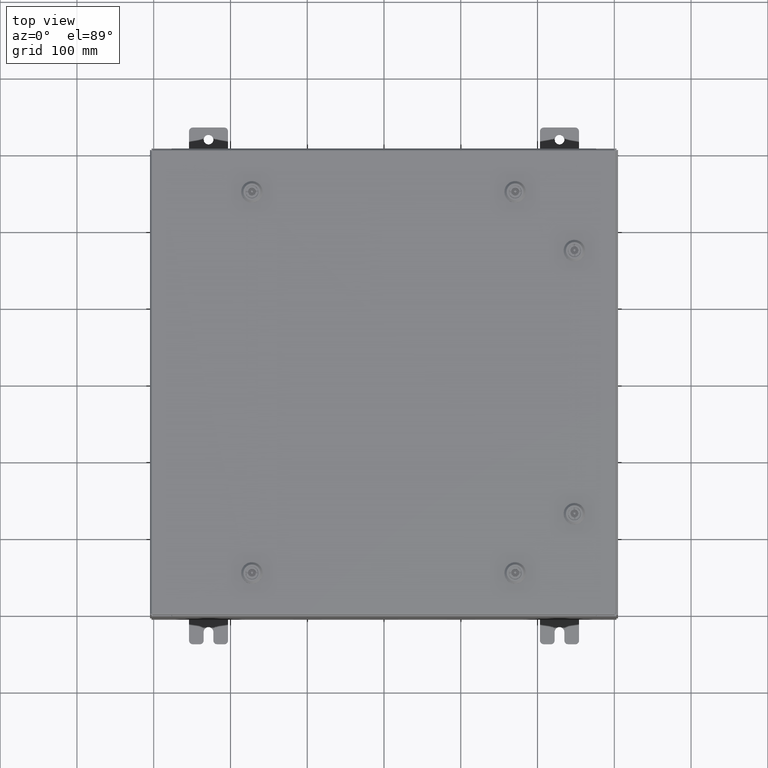
[diagram: clean part render]
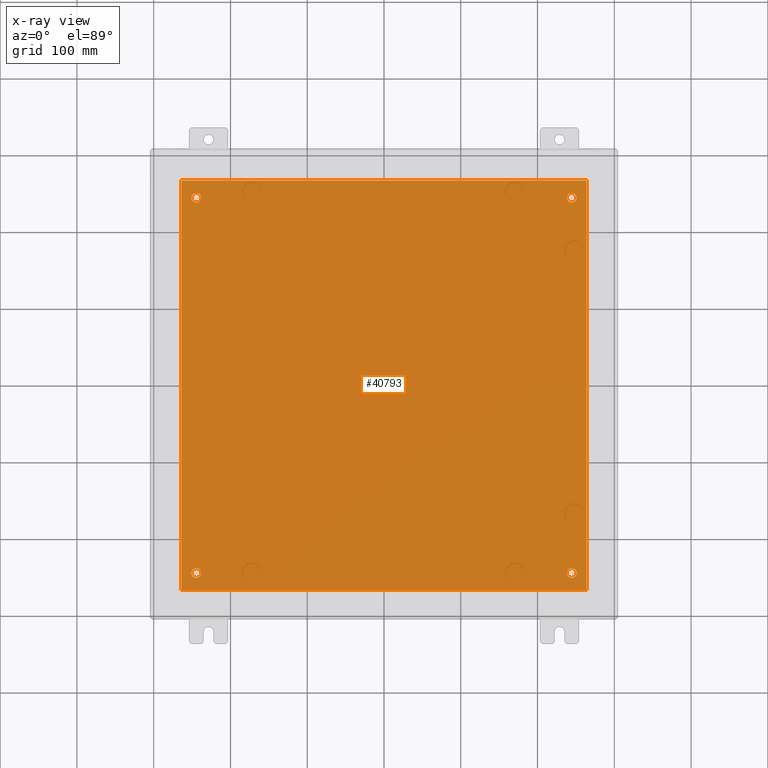
[diagram: x-ray — body ghosted, one internal face saturated and labeled with its STEP entity id]
A machine part, top view, then the same camera in x-ray: the body is ghosted and one INTERNAL B-rep face — a face not visible from any outside direction — is saturated and labeled: STEP entity #40793.
In plain terms, the highlighted planar face has unit normal (0, 0, -1).
Its self-contained STEP definition (entity closure, byte-faithful):
#475 = FACE_BOUND ( 'NONE', #32001, .T. ) ;
#476 = CARTESIAN_POINT ( 'NONE',  ( 9.625000000000005300, 9.625000000000001800, -0.1039999999999999800 ) ) ;
#485 = DIRECTION ( 'NONE',  ( 1.000000000000000000, 0.0000000000000000000, 0.0000000000000000000 ) ) ;
#2077 = EDGE_CURVE ( 'NONE', #15142, #42575, #40214, .T. ) ;
#2918 = LINE ( 'NONE', #48644, #39074 ) ;
#3005 = AXIS2_PLACEMENT_3D ( 'NONE', #8942, #43367, #13859 ) ;
#3628 = CIRCLE ( 'NONE', #53602, 0.2499999999999987000 ) ;
#4705 = EDGE_LOOP ( 'NONE', ( #22232, #27024 ) ) ;
#5419 = DIRECTION ( 'NONE',  ( -1.000000000000000000, 0.0000000000000000000, 0.0000000000000000000 ) ) ;
#6258 = AXIS2_PLACEMENT_3D ( 'NONE', #12764, #49614, #6601 ) ;
#6601 = DIRECTION ( 'NONE',  ( -1.000000000000000000, 0.0000000000000000000, 0.0000000000000000000 ) ) ;
#6744 = VECTOR ( 'NONE', #35397, 39.37007874015748100 ) ;
#7084 = CIRCLE ( 'NONE', #15951, 0.2499999999999987000 ) ;
#7335 = EDGE_CURVE ( 'NONE', #47870, #20761, #34424, .T. ) ;
#8166 = DIRECTION ( 'NONE',  ( -0.0000000000000000000, -0.0000000000000000000, 1.000000000000000000 ) ) ;
#8942 = CARTESIAN_POINT ( 'NONE',  ( -9.625000000000005300, -9.625000000000001800, -0.1039999999999999800 ) ) ;
#8992 = EDGE_LOOP ( 'NONE', ( #35620, #54152, #17828, #25479 ) ) ;
#9489 = VERTEX_POINT ( 'NONE', #42582 ) ;
#10708 = AXIS2_PLACEMENT_3D ( 'NONE', #37655, #8166, #42587 ) ;
#10724 = EDGE_CURVE ( 'NONE', #32295, #39082, #62984, .T. ) ;
#11977 = FACE_OUTER_BOUND ( 'NONE', #8992, .T. ) ;
#12764 = CARTESIAN_POINT ( 'NONE',  ( 9.625000000000005300, 9.625000000000001800, -0.1039999999999999800 ) ) ;
#13531 = FACE_BOUND ( 'NONE', #4705, .T. ) ;
#13561 = VERTEX_POINT ( 'NONE', #21284 ) ;
#13859 = DIRECTION ( 'NONE',  ( -1.000000000000000000, 0.0000000000000000000, 0.0000000000000000000 ) ) ;
#14337 = DIRECTION ( 'NONE',  ( -0.0000000000000000000, -0.0000000000000000000, 1.000000000000000000 ) ) ;
#15142 = VERTEX_POINT ( 'NONE', #48000 ) ;
#15951 = AXIS2_PLACEMENT_3D ( 'NONE', #46116, #16634, #51033 ) ;
#16179 = DIRECTION ( 'NONE',  ( -0.0000000000000000000, -0.0000000000000000000, 1.000000000000000000 ) ) ;
#16634 = DIRECTION ( 'NONE',  ( -0.0000000000000000000, -0.0000000000000000000, 1.000000000000000000 ) ) ;
#17828 = ORIENTED_EDGE ( 'NONE', *, *, #7335, .F. ) ;
#18080 = ORIENTED_EDGE ( 'NONE', *, *, #27271, .T. ) ;
#18875 = DIRECTION ( 'NONE',  ( -1.000000000000000000, 0.0000000000000000000, -0.0000000000000000000 ) ) ;
#19230 = CIRCLE ( 'NONE', #10708, 0.2499999999999987000 ) ;
#20255 = LINE ( 'NONE', #29980, #44902 ) ;
#20761 = VERTEX_POINT ( 'NONE', #51063 ) ;
#21284 = CARTESIAN_POINT ( 'NONE',  ( -9.375000000000005300, 9.625000000000001800, -0.1039999999999999800 ) ) ;
#21743 = CARTESIAN_POINT ( 'NONE',  ( -9.375000000000005300, -9.625000000000001800, -0.1039999999999999800 ) ) ;
#22232 = ORIENTED_EDGE ( 'NONE', *, *, #2077, .T. ) ;
#23597 = CARTESIAN_POINT ( 'NONE',  ( -9.625000000000005300, 9.625000000000001800, -0.1039999999999999800 ) ) ;
#24152 = DIRECTION ( 'NONE',  ( 0.0000000000000000000, 1.000000000000000000, 0.0000000000000000000 ) ) ;
#25126 = FACE_BOUND ( 'NONE', #60896, .T. ) ;
#25479 = ORIENTED_EDGE ( 'NONE', *, *, #54631, .F. ) ;
#25531 = CARTESIAN_POINT ( 'NONE',  ( -10.50000000000000000, 10.50000000000000200, -0.1039999999999999800 ) ) ;
#26641 = AXIS2_PLACEMENT_3D ( 'NONE', #43836, #14337, #48767 ) ;
#27024 = ORIENTED_EDGE ( 'NONE', *, *, #29023, .T. ) ;
#27271 = EDGE_CURVE ( 'NONE', #37586, #62910, #45670, .T. ) ;
#28552 = DIRECTION ( 'NONE',  ( -1.000000000000000000, 0.0000000000000000000, 0.0000000000000000000 ) ) ;
#28583 = CARTESIAN_POINT ( 'NONE',  ( 0.0000000000000000000, 0.0000000000000000000, -0.1039999999999999800 ) ) ;
#29023 = EDGE_CURVE ( 'NONE', #42575, #15142, #50161, .T. ) ;
#29332 = AXIS2_PLACEMENT_3D ( 'NONE', #45693, #16179, #50590 ) ;
#29980 = CARTESIAN_POINT ( 'NONE',  ( -10.50000000000000200, -10.50000000000000000, -0.1039999999999999800 ) ) ;
#31973 = EDGE_CURVE ( 'NONE', #39082, #32295, #39317, .T. ) ;
#32001 = EDGE_LOOP ( 'NONE', ( #52574, #56876 ) ) ;
#32295 = VERTEX_POINT ( 'NONE', #60903 ) ;
#34304 = VECTOR ( 'NONE', #43448, 39.37007874015748100 ) ;
#34424 = LINE ( 'NONE', #25531, #6744 ) ;
#34467 = CARTESIAN_POINT ( 'NONE',  ( 10.38300000000000100, 10.50000000000000200, -0.1039999999999999800 ) ) ;
#34875 = DIRECTION ( 'NONE',  ( -0.0000000000000000000, -0.0000000000000000000, 1.000000000000000000 ) ) ;
#35397 = DIRECTION ( 'NONE',  ( -1.000000000000000000, -0.0000000000000000000, -0.0000000000000000000 ) ) ;
#35620 = ORIENTED_EDGE ( 'NONE', *, *, #60426, .F. ) ;
#36280 = EDGE_CURVE ( 'NONE', #13561, #42722, #19230, .T. ) ;
#37453 = CARTESIAN_POINT ( 'NONE',  ( 9.375000000000007100, -9.625000000000001800, -0.1039999999999999800 ) ) ;
#37586 = VERTEX_POINT ( 'NONE', #21743 ) ;
#37655 = CARTESIAN_POINT ( 'NONE',  ( -9.625000000000005300, 9.625000000000001800, -0.1039999999999999800 ) ) ;
#38202 = FACE_BOUND ( 'NONE', #45285, .T. ) ;
#39074 = VECTOR ( 'NONE', #24152, 39.37007874015748100 ) ;
#39082 = VERTEX_POINT ( 'NONE', #37453 ) ;
#39317 = CIRCLE ( 'NONE', #26641, 0.2499999999999976100 ) ;
#39682 = EDGE_CURVE ( 'NONE', #42722, #13561, #3628, .T. ) ;
#40214 = CIRCLE ( 'NONE', #6258, 0.2499999999999976100 ) ;
#40793 = ADVANCED_FACE ( 'NONE', ( #38202, #475, #13531, #25126, #11977 ), #43417, .T. ) ;
#42575 = VERTEX_POINT ( 'NONE', #43029 ) ;
#42582 = CARTESIAN_POINT ( 'NONE',  ( -10.38299999999999900, -10.50000000000000000, -0.1040000000000031300 ) ) ;
#42587 = DIRECTION ( 'NONE',  ( -1.000000000000000000, 0.0000000000000000000, 0.0000000000000000000 ) ) ;
#42722 = VERTEX_POINT ( 'NONE', #49440 ) ;
#43029 = CARTESIAN_POINT ( 'NONE',  ( 9.375000000000007100, 9.625000000000001800, -0.1039999999999999800 ) ) ;
#43367 = DIRECTION ( 'NONE',  ( -0.0000000000000000000, -0.0000000000000000000, 1.000000000000000000 ) ) ;
#43417 = PLANE ( 'NONE',  #43423 ) ;
#43423 = AXIS2_PLACEMENT_3D ( 'NONE', #28583, #48317, #18875 ) ;
#43448 = DIRECTION ( 'NONE',  ( 0.0000000000000000000, -1.000000000000000000, 0.0000000000000000000 ) ) ;
#43836 = CARTESIAN_POINT ( 'NONE',  ( 9.625000000000005300, -9.625000000000001800, -0.1039999999999999800 ) ) ;
#44257 = AXIS2_PLACEMENT_3D ( 'NONE', #476, #34875, #5419 ) ;
#44902 = VECTOR ( 'NONE', #485, 39.37007874015748100 ) ;
#45285 = EDGE_LOOP ( 'NONE', ( #18080, #53604 ) ) ;
#45670 = CIRCLE ( 'NONE', #3005, 0.2499999999999987000 ) ;
#45693 = CARTESIAN_POINT ( 'NONE',  ( 9.625000000000005300, -9.625000000000001800, -0.1039999999999999800 ) ) ;
#45950 = EDGE_CURVE ( 'NONE', #62910, #37586, #7084, .T. ) ;
#46116 = CARTESIAN_POINT ( 'NONE',  ( -9.625000000000005300, -9.625000000000001800, -0.1039999999999999800 ) ) ;
#46288 = CARTESIAN_POINT ( 'NONE',  ( 10.38299999999999900, -10.50000000000000000, -0.1039999999999999800 ) ) ;
#47870 = VERTEX_POINT ( 'NONE', #34467 ) ;
#48000 = CARTESIAN_POINT ( 'NONE',  ( 9.875000000000003600, 9.625000000000001800, -0.1039999999999999800 ) ) ;
#48317 = DIRECTION ( 'NONE',  ( 0.0000000000000000000, 0.0000000000000000000, -1.000000000000000000 ) ) ;
#48644 = CARTESIAN_POINT ( 'NONE',  ( 10.38300000000000100, -10.50000000000000200, -0.1040000000000009100 ) ) ;
#48767 = DIRECTION ( 'NONE',  ( -1.000000000000000000, 0.0000000000000000000, 0.0000000000000000000 ) ) ;
#49440 = CARTESIAN_POINT ( 'NONE',  ( -9.875000000000005300, 9.625000000000001800, -0.1039999999999999800 ) ) ;
#49614 = DIRECTION ( 'NONE',  ( -0.0000000000000000000, -0.0000000000000000000, 1.000000000000000000 ) ) ;
#50161 = CIRCLE ( 'NONE', #44257, 0.2499999999999976100 ) ;
#50590 = DIRECTION ( 'NONE',  ( -1.000000000000000000, 0.0000000000000000000, 0.0000000000000000000 ) ) ;
#51033 = DIRECTION ( 'NONE',  ( -1.000000000000000000, 0.0000000000000000000, 0.0000000000000000000 ) ) ;
#51063 = CARTESIAN_POINT ( 'NONE',  ( -10.38299999999999900, 10.50000000000000400, -0.1040000000000031300 ) ) ;
#52127 = VERTEX_POINT ( 'NONE', #46288 ) ;
#52574 = ORIENTED_EDGE ( 'NONE', *, *, #10724, .T. ) ;
#53058 = CARTESIAN_POINT ( 'NONE',  ( -10.38299999999999900, 10.50000000000000400, -0.1040000000000031300 ) ) ;
#53602 = AXIS2_PLACEMENT_3D ( 'NONE', #23597, #57912, #28552 ) ;
#53604 = ORIENTED_EDGE ( 'NONE', *, *, #45950, .T. ) ;
#54152 = ORIENTED_EDGE ( 'NONE', *, *, #56710, .F. ) ;
#54631 = EDGE_CURVE ( 'NONE', #52127, #47870, #2918, .T. ) ;
#55453 = ORIENTED_EDGE ( 'NONE', *, *, #36280, .T. ) ;
#56710 = EDGE_CURVE ( 'NONE', #20761, #9489, #60341, .T. ) ;
#56876 = ORIENTED_EDGE ( 'NONE', *, *, #31973, .T. ) ;
#57912 = DIRECTION ( 'NONE',  ( -0.0000000000000000000, -0.0000000000000000000, 1.000000000000000000 ) ) ;
#58289 = CARTESIAN_POINT ( 'NONE',  ( -9.875000000000005300, -9.625000000000001800, -0.1039999999999999800 ) ) ;
#59581 = ORIENTED_EDGE ( 'NONE', *, *, #39682, .T. ) ;
#60341 = LINE ( 'NONE', #53058, #34304 ) ;
#60426 = EDGE_CURVE ( 'NONE', #9489, #52127, #20255, .T. ) ;
#60896 = EDGE_LOOP ( 'NONE', ( #55453, #59581 ) ) ;
#60903 = CARTESIAN_POINT ( 'NONE',  ( 9.875000000000003600, -9.625000000000001800, -0.1039999999999999800 ) ) ;
#62910 = VERTEX_POINT ( 'NONE', #58289 ) ;
#62984 = CIRCLE ( 'NONE', #29332, 0.2499999999999976100 ) ;